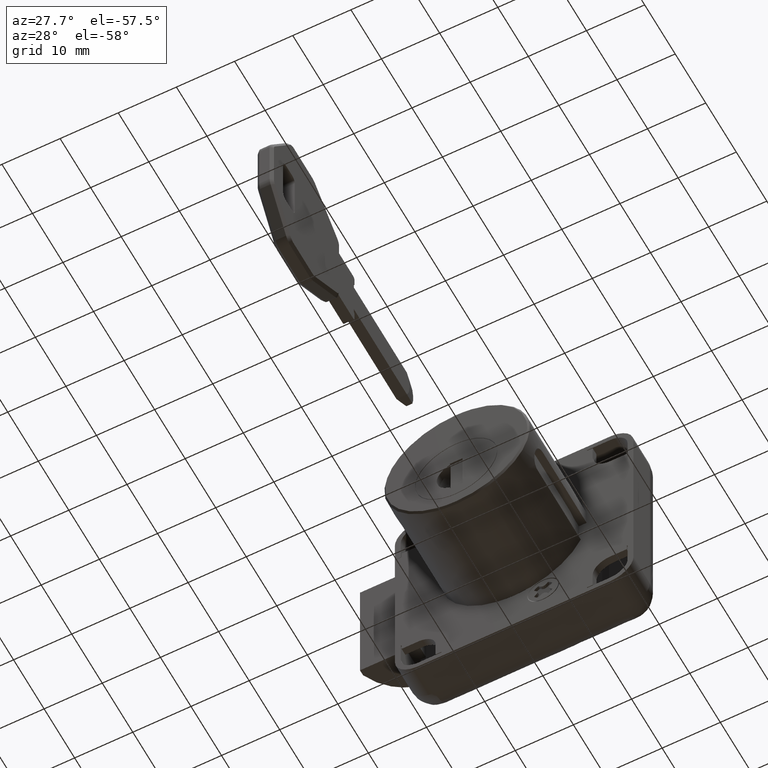
[diagram: clean part render]
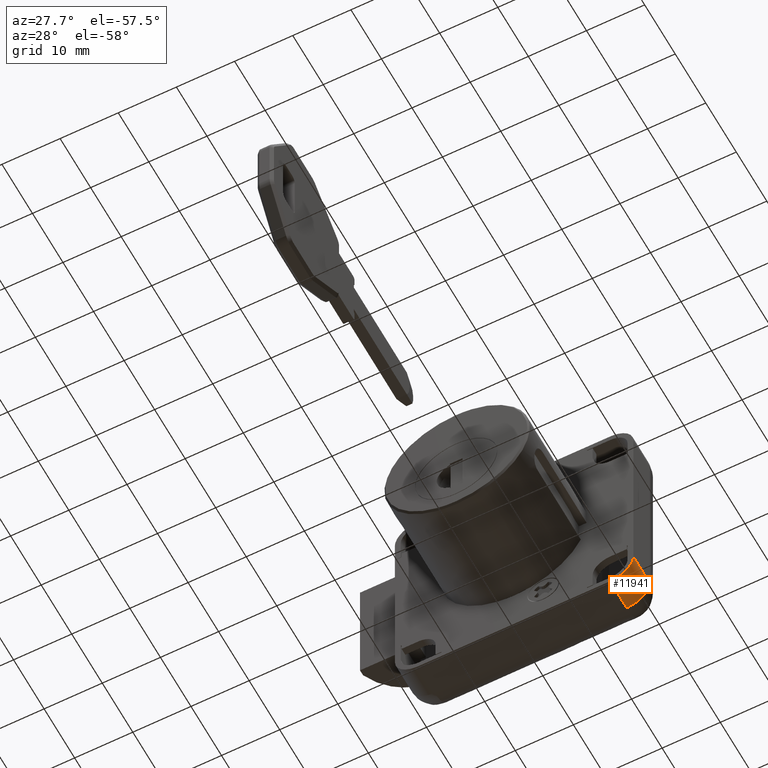
[diagram: same view with one face highlighted and labeled with its STEP entity id]
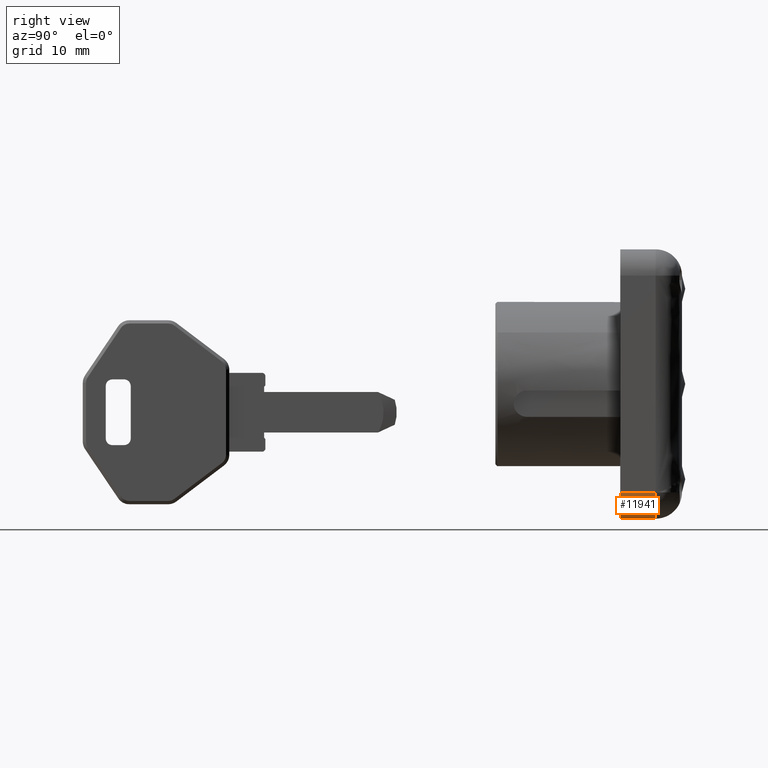
[diagram: same view with one face highlighted and labeled with its STEP entity id]
A machine part, auxiliary view. The second image highlights one B-rep face of the part: STEP entity #11941.
A second angle (right view) of the same face is appended — the face is thin or edge-on in the first view.
In plain terms, the highlighted face is a freeform B-spline surface patch.
Its self-contained STEP definition (entity closure, byte-faithful):
#11881=CARTESIAN_POINT('',(16.395292206651909,-9.534999999983807,-20.498629300135232));
#11882=CARTESIAN_POINT('',(16.395292206651909,-3.861625000000405,-20.498629300135232));
#11883=CARTESIAN_POINT('',(20.799939202102170,-9.534999999983807,-20.613969040902347));
#11884=CARTESIAN_POINT('',(20.799939202102170,-3.861625000000405,-20.613969040902347));
#11885=CARTESIAN_POINT('',(20.490097917410818,-9.534999999983809,-16.218719697733061));
#11886=CARTESIAN_POINT('',(20.490097917410818,-3.861625000000406,-16.218719697733061));
#11894=(BOUNDED_SURFACE()B_SPLINE_SURFACE(1,2,((#11881,#11883,#11885),(#11882,#11884,#11886)),.UNSPECIFIED.,.F.,.F.,.U.)B_SPLINE_SURFACE_WITH_KNOTS((2,2),(3,3),(0.0,5.673374999983404),(0.0,7.084569376353457),.UNSPECIFIED.)GEOMETRIC_REPRESENTATION_ITEM()RATIONAL_B_SPLINE_SURFACE(((1.0,0.670944223154768,0.996392648609106),(1.0,0.670944223154768,0.996392648609106)))REPRESENTATION_ITEM('')SURFACE());
#11895=CARTESIAN_POINT('',(16.499999999887301,-9.399999999984200,-20.500000000233101));
#11896=VERTEX_POINT('',#11895);
#11897=CARTESIAN_POINT('',(20.499999999887301,-9.399999999984200,-16.500000000237002));
#11898=VERTEX_POINT('',#11897);
#11899=CARTESIAN_POINT('',(16.499999999887301,-9.399999999984200,-20.500000000233101));
#11900=CARTESIAN_POINT('',(20.499999999883396,-9.399999999984201,-20.500000000233101));
#11901=CARTESIAN_POINT('',(20.499999999887301,-9.399999999984200,-16.500000000237009));
#11909=(BOUNDED_CURVE()B_SPLINE_CURVE(2,(#11899,#11900,#11901),.UNSPECIFIED.,.F.,.U.)CURVE()GEOMETRIC_REPRESENTATION_ITEM()QUASI_UNIFORM_CURVE()RATIONAL_B_SPLINE_CURVE((1.0,0.707106781186892,1.0))REPRESENTATION_ITEM(''));
#11910=EDGE_CURVE('',#11896,#11898,#11909,.T.);
#11911=ORIENTED_EDGE('',*,*,#11910,.F.);
#11912=CARTESIAN_POINT('',(16.499999999887301,-4.0,-20.500000000233101));
#11913=VERTEX_POINT('',#11912);
#11914=CARTESIAN_POINT('',(16.499999999887301,-4.0,-20.500000000233101));
#11915=CARTESIAN_POINT('',(16.499999999887301,-9.399999999984200,-20.500000000233101));
#11916=QUASI_UNIFORM_CURVE('',1,(#11914,#11915),.UNSPECIFIED.,.F.,.U.);
#11917=EDGE_CURVE('',#11913,#11896,#11916,.T.);
#11918=ORIENTED_EDGE('',*,*,#11917,.F.);
#11919=CARTESIAN_POINT('',(20.499999999887301,-4.0,-16.500000000237002));
#11920=VERTEX_POINT('',#11919);
#11921=CARTESIAN_POINT('',(20.499999999887301,-4.0,-16.500000000237002));
#11922=CARTESIAN_POINT('',(20.499999999883400,-4.000000000000001,-20.500000000233104));
#11923=CARTESIAN_POINT('',(16.499999999887301,-4.0,-20.500000000233101));
#11931=(BOUNDED_CURVE()B_SPLINE_CURVE(2,(#11921,#11922,#11923),.UNSPECIFIED.,.F.,.U.)CURVE()GEOMETRIC_REPRESENTATION_ITEM()QUASI_UNIFORM_CURVE()RATIONAL_B_SPLINE_CURVE((1.0,0.707106781186892,1.0))REPRESENTATION_ITEM(''));
#11932=EDGE_CURVE('',#11920,#11913,#11931,.T.);
#11933=ORIENTED_EDGE('',*,*,#11932,.F.);
#11934=CARTESIAN_POINT('',(20.499999999887301,-9.399999999984200,-16.500000000237002));
#11935=CARTESIAN_POINT('',(20.499999999887301,-4.0,-16.500000000237002));
#11936=QUASI_UNIFORM_CURVE('',1,(#11934,#11935),.UNSPECIFIED.,.F.,.U.);
#11937=EDGE_CURVE('',#11898,#11920,#11936,.T.);
#11938=ORIENTED_EDGE('',*,*,#11937,.F.);
#11939=EDGE_LOOP('',(#11911,#11918,#11933,#11938));
#11940=FACE_OUTER_BOUND('',#11939,.T.);
#11941=ADVANCED_FACE('',(#11940),#11894,.T.);